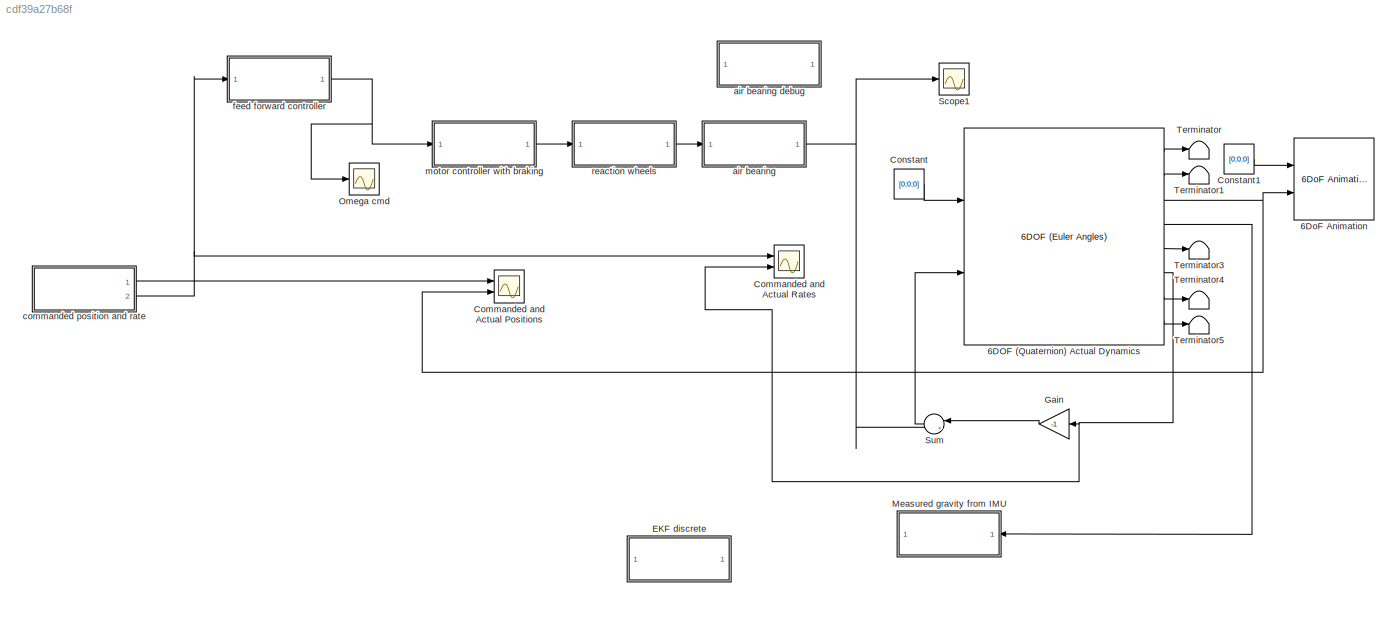
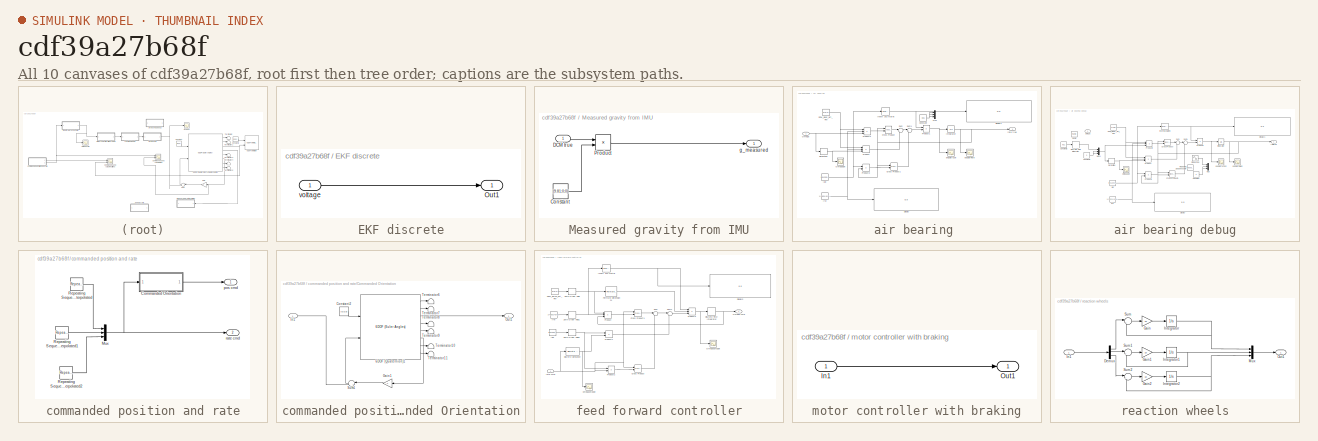
[diagram: thumbnail index - all 10 canvases of the model, root first then tree order]
MODEL slx_cdf39a27b68f
KIND model
CONFIG AbsTol = auto
CONFIG EnableMultiTasking = off
CONFIG FixedStep = auto
CONFIG MaxStep = auto
CONFIG MinStep = auto
CONFIG RelTol = 1e-3
CONFIG SampleTimeConstraint = Unconstrained
CONFIG Solver = VariableStepAuto
CONFIG SolverName = VariableStepAuto
CONFIG StartTime = 0.0
CONFIG StopTime = 200
BLOCK [Reference] 6DOF (Quaternion) Actual Dynamics  REF=shared6dof/6DOF (Euler Angles)
  Ports = [2, 8]
  SourceBlock = shared6dof/6DOF (Euler Angles)
  SourceType = 6DOF EoM (Body Axis)
BLOCK [Reference] 6DoF Animation  REF=aerolibanim/6DoF Animation
  Ports = [2]
  SourceBlock = aerolibanim/6DoF Animation
  SourceProductBaseCode = AE
  SourceProductName = Aerospace Blockset
  SourceType = 6DoF_Animation
BLOCK [Scope] Commanded and Actual Positions
  NumInputPorts = 2
  Ports = [2]
  ScopeSpecificationString = Simulink.scopes.TimeScopeBlockCfg('CurrentConfiguration', extmgr.ConfigurationSet(extmgr.Configuration('Core','General UI',true),extmgr.Configuration('Core','Source UI',true),extmgr.Configuration('Sources','WiredSimulink',true,'DataLoggingVariableName','ScopeData1'),extmgr.Configuration('Visuals','Time Domain',true,'SerializedDisplays',{struct('MinYLimReal','-3.92633','MaxYLimReal','3.92588','YLab...<+1634ch>
BLOCK [Scope] Commanded and Actual Rates
  NumInputPorts = 2
  Ports = [2]
  ScopeSpecificationString = Simulink.scopes.TimeScopeBlockCfg('CurrentConfiguration', extmgr.ConfigurationSet(extmgr.Configuration('Core','General UI',true),extmgr.Configuration('Core','Source UI',true),extmgr.Configuration('Sources','WiredSimulink',true,'DataLoggingVariableName','ScopeData2'),extmgr.Configuration('Visuals','Time Domain',true,'SerializedDisplays',{struct('MinYLimReal','-0.2539','MaxYLimReal','0.25397','YLabe...<+2318ch>
BLOCK [Constant] Constant
  Value = [0;0;0]
BLOCK [Constant] Constant1
  Value = [0;0;0]
BLOCK [SubSystem] EKF discrete
  Ports = [1, 1]
  RequestExecContextInheritance = off
  Variant = off
BLOCK [Outport] EKF discrete/Out1
  IconDisplay = Port number
BLOCK [Inport] EKF discrete/voltage
  IconDisplay = Port number
BLOCK [Gain] Gain
  Gain = -1
  OutDataTypeStr = Inherit: Inherit via internal rule
  ParamDataTypeStr = Inherit: Inherit via internal rule
  SaturateOnIntegerOverflow = off
BLOCK [SubSystem] Measured gravity from IMU
  Ports = [1, 1]
  RequestExecContextInheritance = off
  Variant = off
BLOCK [Constant] Measured gravity from IMU/Constant
  Value = [9.81;0;0]
BLOCK [Inport] Measured gravity from IMU/DCM true
  IconDisplay = Port number
BLOCK [Product] Measured gravity from IMU/Product
  InputSameDT = off
  Multiplication = Matrix(*)
  OutDataTypeStr = Inherit: Inherit via internal rule
  Ports = [2, 1]
  RndMeth = Floor
  SaturateOnIntegerOverflow = off
BLOCK [Outport] Measured gravity from IMU/g_measured
  IconDisplay = Port number
BLOCK [Scope] Omega cmd
  NumInputPorts = 1
  Ports = [1]
  ScopeSpecificationString = Simulink.scopes.TimeScopeBlockCfg('CurrentConfiguration', extmgr.ConfigurationSet(extmgr.Configuration('Core','General UI',true),extmgr.Configuration('Core','Source UI',true),extmgr.Configuration('Sources','WiredSimulink',true,'DataLoggingVariableName','ScopeData2'),extmgr.Configuration('Visuals','Time Domain',true,'SerializedDisplays',{struct('MinYLimReal','-2.97522','MaxYLimReal','2.77481','YLab...<+1438ch>
BLOCK [Scope] Scope1
  NumInputPorts = 1
  Ports = [1]
  ScopeSpecificationString = Simulink.scopes.TimeScopeBlockCfg('CurrentConfiguration', extmgr.ConfigurationSet(extmgr.Configuration('Core','General UI',true),extmgr.Configuration('Core','Source UI',true),extmgr.Configuration('Sources','WiredSimulink',true,'DataLoggingVariableName','ScopeData1'),extmgr.Configuration('Visuals','Time Domain',true,'SerializedDisplays',{struct('MinYLimReal','-2.28683','MaxYLimReal','0.25409','YLab...<+1537ch>
BLOCK [Sum] Sum
  IconShape = round
  InputSameDT = off
  Inputs = |++
  OutDataTypeStr = Inherit: Inherit via internal rule
  Ports = [2, 1]
  SaturateOnIntegerOverflow = off
BLOCK [Terminator] Terminator
BLOCK [Terminator] Terminator1
BLOCK [Terminator] Terminator3
BLOCK [Terminator] Terminator4
BLOCK [Terminator] Terminator5
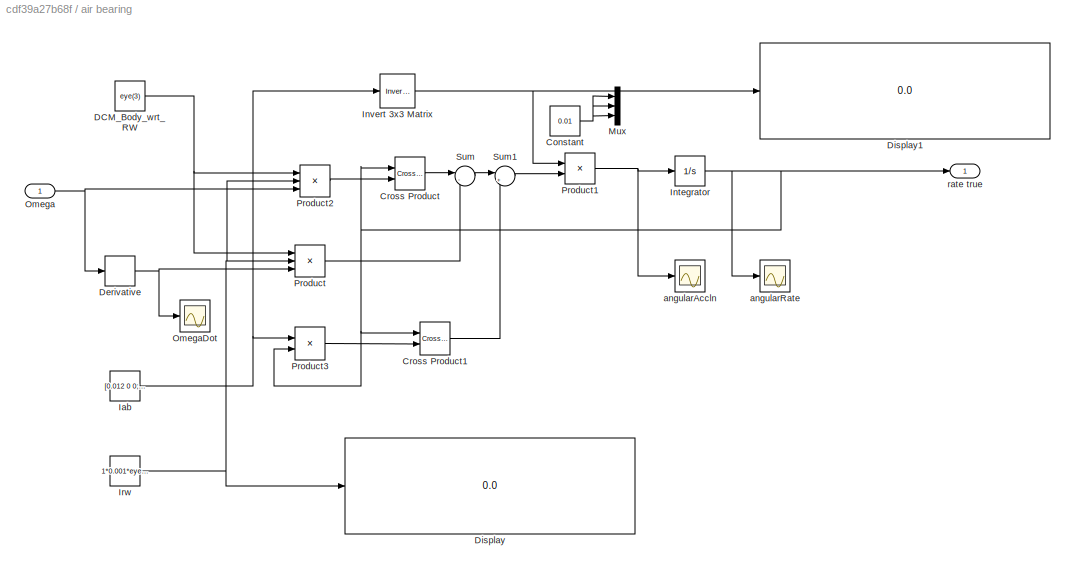
BLOCK [SubSystem] air bearing 
  Ports = [1, 1]
  RequestExecContextInheritance = off
  Variant = off
BLOCK [Constant] air bearing /Constant
  Value = 0.01
BLOCK [Reference] air bearing /Cross Product  REF=vrlib/Utilities/Cross Product
  Ports = [2, 1]
  SourceBlock = vrlib/Utilities/Cross Product
  SourceProductBaseCode = VR
  SourceProductName = Simulink 3D Animation
  SourceType = Cross Product
BLOCK [Reference] air bearing /Cross Product1  REF=vrlib/Utilities/Cross Product
  Ports = [2, 1]
  SourceBlock = vrlib/Utilities/Cross Product
  SourceProductBaseCode = VR
  SourceProductName = Simulink 3D Animation
  SourceType = Cross Product
BLOCK [Constant] air bearing /DCM_Body_wrt_RW
  Value = eye(3)
BLOCK [Derivative] air bearing /Derivative
  CoefficientInTFapproximation = 1
BLOCK [Display] air bearing /Display
  Decimation = 1
  Ports = [1]
BLOCK [Display] air bearing /Display1
  Decimation = 1
  Ports = [1]
BLOCK [Constant] air bearing /Iab
  Value = [0.012 0 0; 0 0.011 0; 0 0 0.01]
BLOCK [Integrator] air bearing /Integrator
  Ports = [1, 1]
BLOCK [Reference] air bearing /Invert 3x3 Matrix  REF=aerolibutil/Invert 
3x3 Matrix
  Ports = [1, 1]
  SourceBlock = aerolibutil/Invert \n3x3 Matrix
  SourceProductBaseCode = AE
  SourceProductName = Aerospace Blockset
  SourceType = Invert 3x3 Matrix
BLOCK [Constant] air bearing /Irw
  Value = 1*0.001*eye(3)
BLOCK [Mux] air bearing /Mux
  DisplayOption = bar
  Inputs = 3
  Ports = [3, 1]
BLOCK [Inport] air bearing /Omega
  IconDisplay = Port number
BLOCK [Scope] air bearing /OmegaDot
  NumInputPorts = 1
  Ports = [1]
  ScopeSpecificationString = Simulink.scopes.TimeScopeBlockCfg('CurrentConfiguration', extmgr.ConfigurationSet(extmgr.Configuration('Core','General UI',true),extmgr.Configuration('Core','Source UI',true),extmgr.Configuration('Sources','WiredSimulink',true,'DataLoggingVariableName','ScopeData3'),extmgr.Configuration('Visuals','Time Domain',true,'SerializedDisplays',{struct('MinYLimReal','-0.2976','MaxYLimReal','0.27756','YLabe...<+1423ch>
BLOCK [Product] air bearing /Product
  InputSameDT = off
  Inputs = 3
  Multiplication = Matrix(*)
  OutDataTypeStr = Inherit: Inherit via internal rule
  Ports = [3, 1]
  RndMeth = Floor
  SaturateOnIntegerOverflow = off
BLOCK [Product] air bearing /Product1
  InputSameDT = off
  Multiplication = Matrix(*)
  OutDataTypeStr = Inherit: Inherit via internal rule
  Ports = [2, 1]
  RndMeth = Floor
  SaturateOnIntegerOverflow = off
BLOCK [Product] air bearing /Product2
  InputSameDT = off
  Inputs = 3
  Multiplication = Matrix(*)
  OutDataTypeStr = Inherit: Inherit via internal rule
  Ports = [3, 1]
  RndMeth = Floor
  SaturateOnIntegerOverflow = off
BLOCK [Product] air bearing /Product3
  InputSameDT = off
  Multiplication = Matrix(*)
  OutDataTypeStr = Inherit: Inherit via internal rule
  Ports = [2, 1]
  RndMeth = Floor
  SaturateOnIntegerOverflow = off
BLOCK [Sum] air bearing /Sum
  IconShape = round
  InputSameDT = off
  Inputs = |--
  OutDataTypeStr = Inherit: Inherit via internal rule
  Ports = [2, 1]
  SaturateOnIntegerOverflow = off
BLOCK [Sum] air bearing /Sum1
  IconShape = round
  InputSameDT = off
  Inputs = |+-
  OutDataTypeStr = Inherit: Inherit via internal rule
  Ports = [2, 1]
  SaturateOnIntegerOverflow = off
BLOCK [Scope] air bearing /angularAccln
  NumInputPorts = 1
  Ports = [1]
  ScopeSpecificationString = Simulink.scopes.TimeScopeBlockCfg('CurrentConfiguration', extmgr.ConfigurationSet(extmgr.Configuration('Core','General UI',true),extmgr.Configuration('Core','Source UI',true),extmgr.Configuration('Sources','WiredSimulink',true,'DataLoggingVariableName','ScopeData5'),extmgr.Configuration('Visuals','Time Domain',true,'SerializedDisplays',{struct('MinYLimReal','-0.02503','MaxYLimReal','0.025','YLabel...<+1423ch>
BLOCK [Scope] air bearing /angularRate
  NumInputPorts = 1
  Ports = [1]
  ScopeSpecificationString = Simulink.scopes.TimeScopeBlockCfg('CurrentConfiguration', extmgr.ConfigurationSet(extmgr.Configuration('Core','General UI',true),extmgr.Configuration('Core','Source UI',true),extmgr.Configuration('Sources','WiredSimulink',true,'DataLoggingVariableName','ScopeData6'),extmgr.Configuration('Visuals','Time Domain',true,'SerializedDisplays',{struct('MinYLimReal','-0.25409','MaxYLimReal','2.28679','YLab...<+1451ch>
BLOCK [Outport] air bearing /rate true
  IconDisplay = Port number
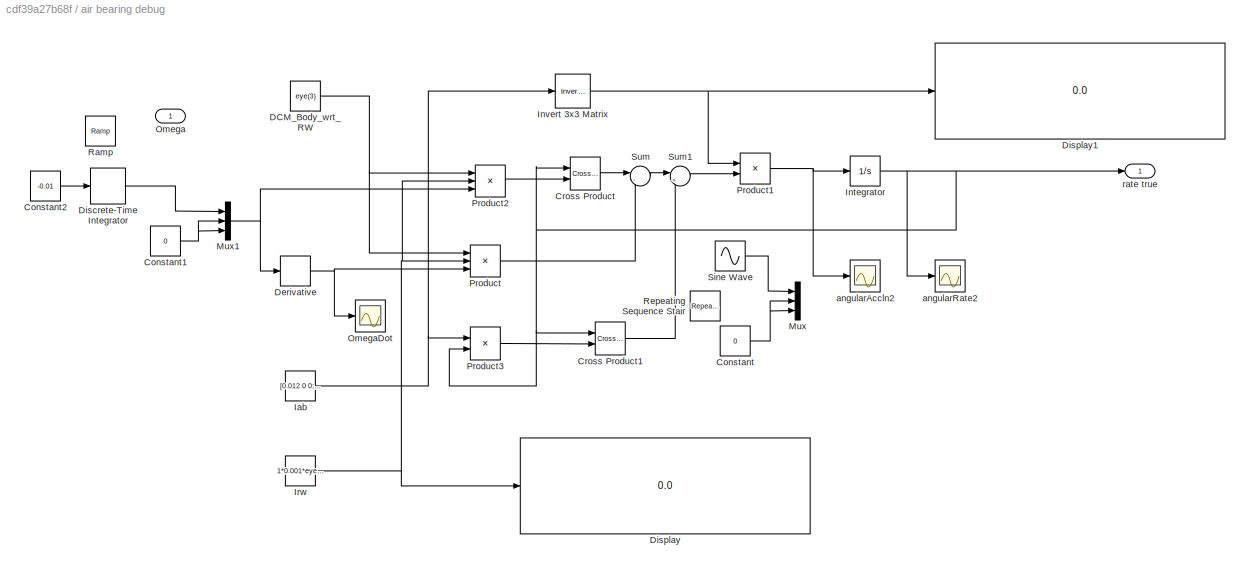
BLOCK [SubSystem] air bearing debug
  Ports = [1, 1]
  RequestExecContextInheritance = off
  Variant = off
BLOCK [Constant] air bearing debug/Constant
  Value = 0
BLOCK [Constant] air bearing debug/Constant1
  Value = 0
BLOCK [Constant] air bearing debug/Constant2
  Value = -0.01
BLOCK [Reference] air bearing debug/Cross Product  REF=vrlib/Utilities/Cross Product
  Ports = [2, 1]
  SourceBlock = vrlib/Utilities/Cross Product
  SourceProductBaseCode = VR
  SourceProductName = Simulink 3D Animation
  SourceType = Cross Product
BLOCK [Reference] air bearing debug/Cross Product1  REF=vrlib/Utilities/Cross Product
  Ports = [2, 1]
  SourceBlock = vrlib/Utilities/Cross Product
  SourceProductBaseCode = VR
  SourceProductName = Simulink 3D Animation
  SourceType = Cross Product
BLOCK [Constant] air bearing debug/DCM_Body_wrt_RW
  Value = eye(3)
BLOCK [Derivative] air bearing debug/Derivative
  CoefficientInTFapproximation = 1
BLOCK [DiscreteIntegrator] air bearing debug/Discrete-Time Integrator
  ICPrevOutput = DiscIntNeverNeededParam
  ICPrevScaledInput = DiscIntNeverNeededParam
  InitialConditionSetting = State (most efficient)
  Ports = [1, 1]
  SampleTime = 0.1
BLOCK [Display] air bearing debug/Display
  Decimation = 1
  Ports = [1]
BLOCK [Display] air bearing debug/Display1
  Decimation = 1
  Ports = [1]
BLOCK [Constant] air bearing debug/Iab
  Value = [0.012 0 0; 0 0.011 0; 0 0 0.01]
BLOCK [Integrator] air bearing debug/Integrator
  Ports = [1, 1]
BLOCK [Reference] air bearing debug/Invert 3x3 Matrix  REF=aerolibutil/Invert 
3x3 Matrix
  Ports = [1, 1]
  SourceBlock = aerolibutil/Invert \n3x3 Matrix
  SourceProductBaseCode = AE
  SourceProductName = Aerospace Blockset
  SourceType = Invert 3x3 Matrix
BLOCK [Constant] air bearing debug/Irw
  Value = 1*0.001*eye(3)
BLOCK [Mux] air bearing debug/Mux
  DisplayOption = bar
  Inputs = 3
  Ports = [3, 1]
BLOCK [Mux] air bearing debug/Mux1
  DisplayOption = bar
  Inputs = 3
  Ports = [3, 1]
BLOCK [Inport] air bearing debug/Omega
  IconDisplay = Port number
BLOCK [Scope] air bearing debug/OmegaDot
  NumInputPorts = 1
  Ports = [1]
  ScopeSpecificationString = Simulink.scopes.TimeScopeBlockCfg('CurrentConfiguration', extmgr.ConfigurationSet(extmgr.Configuration('Core','General UI',true),extmgr.Configuration('Core','Source UI',true),extmgr.Configuration('Sources','WiredSimulink',true,'DataLoggingVariableName','ScopeData3'),extmgr.Configuration('Visuals','Time Domain',true,'SerializedDisplays',{struct('MinYLimReal','-0.1125','MaxYLimReal','0.0125','YLabel...<+1424ch>
BLOCK [Product] air bearing debug/Product
  InputSameDT = off
  Inputs = 3
  Multiplication = Matrix(*)
  OutDataTypeStr = Inherit: Inherit via internal rule
  Ports = [3, 1]
  RndMeth = Floor
  SaturateOnIntegerOverflow = off
BLOCK [Product] air bearing debug/Product1
  InputSameDT = off
  Multiplication = Matrix(*)
  OutDataTypeStr = Inherit: Inherit via internal rule
  Ports = [2, 1]
  RndMeth = Floor
  SaturateOnIntegerOverflow = off
BLOCK [Product] air bearing debug/Product2
  InputSameDT = off
  Inputs = 3
  Multiplication = Matrix(*)
  OutDataTypeStr = Inherit: Inherit via internal rule
  Ports = [3, 1]
  RndMeth = Floor
  SaturateOnIntegerOverflow = off
BLOCK [Product] air bearing debug/Product3
  InputSameDT = off
  Multiplication = Matrix(*)
  OutDataTypeStr = Inherit: Inherit via internal rule
  Ports = [2, 1]
  RndMeth = Floor
  SaturateOnIntegerOverflow = off
BLOCK [Reference] air bearing debug/Ramp  REF=simulink/Sources/Ramp
  Ports = [0, 1]
  SourceBlock = simulink/Sources/Ramp
  SourceProductBaseCode = SL
  SourceProductName = Simulink
  SourceType = Ramp
BLOCK [Reference] air bearing debug/Repeating Sequence Stair  REF=simulink/Sources/Repeating
Sequence
Stair
  Ports = [0, 1]
  SourceBlock = simulink/Sources/Repeating\nSequence\nStair
  SourceProductBaseCode = SL
  SourceProductName = Simulink
  SourceType = Repeating Sequence Stair
BLOCK [Sin] air bearing debug/Sine Wave
  Amplitude = 0.01
  Frequency = .1
  Phase = pi/2
  Ports = [0, 1]
  SampleTime = 0
BLOCK [Sum] air bearing debug/Sum
  IconShape = round
  InputSameDT = off
  Inputs = |--
  OutDataTypeStr = Inherit: Inherit via internal rule
  Ports = [2, 1]
  SaturateOnIntegerOverflow = off
BLOCK [Sum] air bearing debug/Sum1
  IconShape = round
  InputSameDT = off
  Inputs = |+-
  OutDataTypeStr = Inherit: Inherit via internal rule
  Ports = [2, 1]
  SaturateOnIntegerOverflow = off
BLOCK [Scope] air bearing debug/angularAccln2
  NumInputPorts = 1
  Ports = [1]
  ScopeSpecificationString = Simulink.scopes.TimeScopeBlockCfg('CurrentConfiguration', extmgr.ConfigurationSet(extmgr.Configuration('Core','General UI',true),extmgr.Configuration('Core','Source UI',true),extmgr.Configuration('Sources','WiredSimulink',true,'DataLoggingVariableName','ScopeData5'),extmgr.Configuration('Visuals','Time Domain',true,'SerializedDisplays',{struct('MinYLimReal','-0.00182','MaxYLimReal','0.01641','YLab...<+1426ch>
BLOCK [Scope] air bearing debug/angularRate2
  NumInputPorts = 1
  Ports = [1]
  ScopeSpecificationString = Simulink.scopes.TimeScopeBlockCfg('CurrentConfiguration', extmgr.ConfigurationSet(extmgr.Configuration('Core','General UI',true),extmgr.Configuration('Core','Source UI',true),extmgr.Configuration('Sources','WiredSimulink',true,'DataLoggingVariableName','ScopeData6'),extmgr.Configuration('Visuals','Time Domain',true,'SerializedDisplays',{struct('MinYLimReal','-0.00009','MaxYLimReal','0.00085','YLab...<+1453ch>
BLOCK [Outport] air bearing debug/rate true
  IconDisplay = Port number
BLOCK [SubSystem] commanded position and rate
  Ports = [0, 2]
  RequestExecContextInheritance = off
  Variant = off
BLOCK [SubSystem] commanded position and rate/Commanded Orientation
  Ports = [1, 1]
  RequestExecContextInheritance = off
  Variant = off
BLOCK [Reference] commanded position and rate/Commanded Orientation/6DOF (Quaternion)1  REF=shared6dof/6DOF (Euler Angles)
  Ports = [2, 8]
  SourceBlock = shared6dof/6DOF (Euler Angles)
  SourceType = 6DOF EoM (Body Axis)
BLOCK [Constant] commanded position and rate/Commanded Orientation/Constant2
  Value = [0;0;0]
BLOCK [Gain] commanded position and rate/Commanded Orientation/Gain1
  Gain = -1
  OutDataTypeStr = Inherit: Inherit via internal rule
  ParamDataTypeStr = Inherit: Inherit via internal rule
  SaturateOnIntegerOverflow = off
BLOCK [Inport] commanded position and rate/Commanded Orientation/In1
  IconDisplay = Port number
BLOCK [Outport] commanded position and rate/Commanded Orientation/Out1
  IconDisplay = Port number
BLOCK [Sum] commanded position and rate/Commanded Orientation/Sum1
  IconShape = round
  InputSameDT = off
  Inputs = |++
  OutDataTypeStr = Inherit: Inherit via internal rule
  Ports = [2, 1]
  SaturateOnIntegerOverflow = off
BLOCK [Terminator] commanded position and rate/Commanded Orientation/Terminator10
BLOCK [Terminator] commanded position and rate/Commanded Orientation/Terminator11
BLOCK [Terminator] commanded position and rate/Commanded Orientation/Terminator6
BLOCK [Terminator] commanded position and rate/Commanded Orientation/Terminator7
BLOCK [Terminator] commanded position and rate/Commanded Orientation/Terminator8
BLOCK [Terminator] commanded position and rate/Commanded Orientation/Terminator9
BLOCK [Mux] commanded position and rate/Mux
  DisplayOption = bar
  Inputs = 3
  Ports = [3, 1]
BLOCK [Reference] commanded position and rate/Repeating Sequence Interpolated  REF=simulink/Sources/Repeating
Sequence
Interpolated
  Ports = [0, 1]
  SourceBlock = simulink/Sources/Repeating\nSequence\nInterpolated
  SourceProductBaseCode = SL
  SourceProductName = Simulink
  SourceType = Repeating Sequence Interpolated
BLOCK [Reference] commanded position and rate/Repeating Sequence Interpolated1  REF=simulink/Sources/Repeating
Sequence
Interpolated
  Ports = [0, 1]
  SourceBlock = simulink/Sources/Repeating\nSequence\nInterpolated
  SourceProductBaseCode = SL
  SourceProductName = Simulink
  SourceType = Repeating Sequence Interpolated
BLOCK [Reference] commanded position and rate/Repeating Sequence Interpolated2  REF=simulink/Sources/Repeating
Sequence
Interpolated
  Ports = [0, 1]
  SourceBlock = simulink/Sources/Repeating\nSequence\nInterpolated
  SourceProductBaseCode = SL
  SourceProductName = Simulink
  SourceType = Repeating Sequence Interpolated
BLOCK [Outport] commanded position and rate/pos cmd
  IconDisplay = Port number
BLOCK [Outport] commanded position and rate/rate cmd
  IconDisplay = Port number
  Port = 2
BLOCK [SubSystem] feed forward controller
  Ports = [1, 1]
  RequestExecContextInheritance = off
  Variant = off
BLOCK [Reference] feed forward controller/Cross Product  REF=vrlib/Utilities/Cross Product
  Ports = [2, 1]
  SourceBlock = vrlib/Utilities/Cross Product
  SourceProductBaseCode = VR
  SourceProductName = Simulink 3D Animation
  SourceType = Cross Product
BLOCK [Reference] feed forward controller/Cross Product1  REF=vrlib/Utilities/Cross Product
  Ports = [2, 1]
  SourceBlock = vrlib/Utilities/Cross Product
  SourceProductBaseCode = VR
  SourceProductName = Simulink 3D Animation
  SourceType = Cross Product
BLOCK [Constant] feed forward controller/DCM_BODY_wrt_RW
  Value = eye(3)
BLOCK [Reference] feed forward controller/Discrete Derivative  REF=simulink/Discrete/Discrete Derivative
  Ports = [1, 1]
  SourceBlock = simulink/Discrete/Discrete Derivative
  SourceProductBaseCode = SL
  SourceProductName = Simulink
  SourceType = Discrete Derivative
BLOCK [DiscreteIntegrator] feed forward controller/Discrete-Time Integrator
  ICPrevOutput = DiscIntNeverNeededParam
  ICPrevScaledInput = DiscIntNeverNeededParam
  InitialConditionSetting = State (most efficient)
  Ports = [1, 1]
  SampleTime = -1
  gainval = 1
BLOCK [Display] feed forward controller/Display3
  Decimation = 1
  Ports = [1]
BLOCK [Constant] feed forward controller/Iab
  Value = [0.012 0 0; 0 0.011 0; 0 0 0.01]
BLOCK [Reference] feed forward controller/Invert 3x3 Matrix  REF=aerolibutil/Invert 
3x3 Matrix
  Ports = [1, 1]
  SourceBlock = aerolibutil/Invert \n3x3 Matrix
  SourceProductBaseCode = AE
  SourceProductName = Aerospace Blockset
  SourceType = Invert 3x3 Matrix
BLOCK [Constant] feed forward controller/Irw
  Value = 1*0.001*eye(3)
BLOCK [Outport] feed forward controller/Omega cmd
  IconDisplay = Port number
BLOCK [Scope] feed forward controller/OmegaCmdDot
  NumInputPorts = 1
  Ports = [1]
  ScopeSpecificationString = Simulink.scopes.TimeScopeBlockCfg('CurrentConfiguration', extmgr.ConfigurationSet(extmgr.Configuration('Core','General UI',true),extmgr.Configuration('Core','Source UI',true),extmgr.Configuration('Sources','WiredSimulink',true,'DataLoggingVariableName','ScopeData4'),extmgr.Configuration('Visuals','Time Domain',true,'SerializedDisplays',{struct('MinYLimReal','-0.89375','MaxYLimReal','2.54375','YLab...<+1423ch>
BLOCK [PermuteDimensions] feed forward controller/Permute Dimensions1
  Order = [2 1]
BLOCK [Product] feed forward controller/Product
  InputSameDT = off
  Inputs = 3
  Multiplication = Matrix(*)
  OutDataTypeStr = Inherit: Inherit via internal rule
  Ports = [3, 1]
  RndMeth = Floor
  SaturateOnIntegerOverflow = off
BLOCK [Product] feed forward controller/Product1
  InputSameDT = off
  Multiplication = Matrix(*)
  OutDataTypeStr = Inherit: Inherit via internal rule
  Ports = [2, 1]
  RndMeth = Floor
  SaturateOnIntegerOverflow = off
BLOCK [Product] feed forward controller/Product2
  InputSameDT = off
  Multiplication = Matrix(*)
  OutDataTypeStr = Inherit: Inherit via internal rule
  Ports = [2, 1]
  RndMeth = Floor
  SaturateOnIntegerOverflow = off
BLOCK [Product] feed forward controller/Product3
  InputSameDT = off
  Inputs = 3
  Multiplication = Matrix(*)
  OutDataTypeStr = Inherit: Inherit via internal rule
  Ports = [3, 1]
  RndMeth = Floor
  SaturateOnIntegerOverflow = off
BLOCK [Sum] feed forward controller/Sum
  IconShape = round
  InputSameDT = off
  Inputs = |--
  OutDataTypeStr = Inherit: Inherit via internal rule
  Ports = [2, 1]
  SaturateOnIntegerOverflow = off
BLOCK [Sum] feed forward controller/Sum1
  IconShape = round
  InputSameDT = off
  Inputs = |+-
  OutDataTypeStr = Inherit: Inherit via internal rule
  Ports = [2, 1]
  SaturateOnIntegerOverflow = off
BLOCK [ZeroOrderHold] feed forward controller/Zero-Order Hold
  SampleTime = -1
BLOCK [ZeroOrderHold] feed forward controller/Zero-Order Hold1
  SampleTime = -1
BLOCK [ZeroOrderHold] feed forward controller/Zero-Order Hold2
  SampleTime = -1
BLOCK [Scope] feed forward controller/omegaCmdDot
  NumInputPorts = 1
  Ports = [1]
  ScopeSpecificationString = Simulink.scopes.TimeScopeBlockCfg('CurrentConfiguration', extmgr.ConfigurationSet(extmgr.Configuration('Core','General UI',true),extmgr.Configuration('Core','Source UI',true),extmgr.Configuration('Sources','WiredSimulink',true,'DataLoggingVariableName','ScopeData1'),extmgr.Configuration('Visuals','Time Domain',true,'SerializedDisplays',{struct('MinYLimReal','-0.23125','MaxYLimReal','0.08125','YLab...<+1459ch>
BLOCK [Inport] feed forward controller/rate cmd
  IconDisplay = Port number
BLOCK [SubSystem] motor controller with braking
  Ports = [1, 1]
  RequestExecContextInheritance = off
  Variant = off
BLOCK [Inport] motor controller with braking/In1
  IconDisplay = Port number
BLOCK [Outport] motor controller with braking/Out1
  IconDisplay = Port number
BLOCK [SubSystem] reaction wheels
  Ports = [1, 1]
  RequestExecContextInheritance = off
  Variant = off
BLOCK [Demux] reaction wheels/Demux
  DisplayOption = bar
  Outputs = 3
  Ports = [1, 3]
BLOCK [Gain] reaction wheels/Gain
  Gain = 10
  OutDataTypeStr = Inherit: Inherit via internal rule
  ParamDataTypeStr = Inherit: Inherit via internal rule
  SaturateOnIntegerOverflow = off
BLOCK [Gain] reaction wheels/Gain1
  Gain = 10
  OutDataTypeStr = Inherit: Inherit via internal rule
  ParamDataTypeStr = Inherit: Inherit via internal rule
  SaturateOnIntegerOverflow = off
BLOCK [Gain] reaction wheels/Gain2
  Gain = 10
  OutDataTypeStr = Inherit: Inherit via internal rule
  ParamDataTypeStr = Inherit: Inherit via internal rule
  SaturateOnIntegerOverflow = off
BLOCK [Inport] reaction wheels/In1
  IconDisplay = Port number
BLOCK [Integrator] reaction wheels/Integrator
  Ports = [1, 1]
BLOCK [Integrator] reaction wheels/Integrator1
  Ports = [1, 1]
BLOCK [Integrator] reaction wheels/Integrator2
  Ports = [1, 1]
BLOCK [Mux] reaction wheels/Mux
  DisplayOption = bar
  Inputs = 3
  Ports = [3, 1]
BLOCK [Outport] reaction wheels/Out1
  IconDisplay = Port number
BLOCK [Sum] reaction wheels/Sum
  IconShape = round
  InputSameDT = off
  Inputs = |+-
  OutDataTypeStr = Inherit: Inherit via internal rule
  Ports = [2, 1]
  SaturateOnIntegerOverflow = off
BLOCK [Sum] reaction wheels/Sum1
  IconShape = round
  InputSameDT = off
  Inputs = |+-
  OutDataTypeStr = Inherit: Inherit via internal rule
  Ports = [2, 1]
  SaturateOnIntegerOverflow = off
BLOCK [Sum] reaction wheels/Sum2
  IconShape = round
  InputSameDT = off
  Inputs = |+-
  OutDataTypeStr = Inherit: Inherit via internal rule
  Ports = [2, 1]
  SaturateOnIntegerOverflow = off
LINE 6DOF (Quaternion) Actual Dynamics:1 -> Terminator:1
LINE 6DOF (Quaternion) Actual Dynamics:2 -> Terminator1:1
NET 6DOF (Quaternion) Actual Dynamics:3 -> 6DoF Animation:2, Commanded and Actual Positions:2
LINE 6DOF (Quaternion) Actual Dynamics:4 -> Measured gravity from IMU:1
LINE 6DOF (Quaternion) Actual Dynamics:5 -> Terminator3:1
NET 6DOF (Quaternion) Actual Dynamics:6 -> Commanded and Actual Rates:2, Gain:1
LINE 6DOF (Quaternion) Actual Dynamics:7 -> Terminator4:1
LINE 6DOF (Quaternion) Actual Dynamics:8 -> Terminator5:1
LINE Constant1:1 -> 6DoF Animation:1
LINE Constant:1 -> 6DOF (Quaternion) Actual Dynamics:1
LINE EKF discrete/voltage:1 -> EKF discrete/Out1:1
LINE Gain:1 -> Sum:1
LINE Measured gravity from IMU/Constant:1 -> Measured gravity from IMU/Product:2
LINE Measured gravity from IMU/DCM true:1 -> Measured gravity from IMU/Product:1
LINE Measured gravity from IMU/Product:1 -> Measured gravity from IMU/g_measured:1
LINE Sum:1 -> 6DOF (Quaternion) Actual Dynamics:2
NET air bearing /Constant:1 -> air bearing /Mux:1, air bearing /Mux:2, air bearing /Mux:3
LINE air bearing /Cross Product1:1 -> air bearing /Sum1:2
LINE air bearing /Cross Product:1 -> air bearing /Sum:1
NET air bearing /DCM_Body_wrt_RW:1 -> air bearing /Product2:1, air bearing /Product:1
NET air bearing /Derivative:1 -> air bearing /OmegaDot:1, air bearing /Product:3
NET air bearing /Iab:1 -> air bearing /Invert 3x3 Matrix:1, air bearing /Product3:1
NET air bearing /Integrator:1 -> air bearing /Cross Product1:1, air bearing /Cross Product:1, air bearing /Product3:2, air bearing /angularRate:1, air bearing /rate true:1
NET air bearing /Invert 3x3 Matrix:1 -> air bearing /Display1:1, air bearing /Product1:1
NET air bearing /Irw:1 -> air bearing /Display:1, air bearing /Product2:2, air bearing /Product:2
NET air bearing /Omega:1 -> air bearing /Derivative:1, air bearing /Product2:3
NET air bearing /Product1:1 -> air bearing /Integrator:1, air bearing /angularAccln:1
LINE air bearing /Product2:1 -> air bearing /Cross Product:2
LINE air bearing /Product3:1 -> air bearing /Cross Product1:2
LINE air bearing /Product:1 -> air bearing /Sum:2
LINE air bearing /Sum1:1 -> air bearing /Product1:2
LINE air bearing /Sum:1 -> air bearing /Sum1:1
NET air bearing :1 -> Scope1:1, Sum:2
NET air bearing debug/Constant1:1 -> air bearing debug/Mux1:2, air bearing debug/Mux1:3
LINE air bearing debug/Constant2:1 -> air bearing debug/Discrete-Time Integrator:1
NET air bearing debug/Constant:1 -> air bearing debug/Mux:2, air bearing debug/Mux:3
LINE air bearing debug/Cross Product1:1 -> air bearing debug/Sum1:2
LINE air bearing debug/Cross Product:1 -> air bearing debug/Sum:1
NET air bearing debug/DCM_Body_wrt_RW:1 -> air bearing debug/Product2:1, air bearing debug/Product:1
NET air bearing debug/Derivative:1 -> air bearing debug/OmegaDot:1, air bearing debug/Product:3
LINE air bearing debug/Discrete-Time Integrator:1 -> air bearing debug/Mux1:1
NET air bearing debug/Iab:1 -> air bearing debug/Invert 3x3 Matrix:1, air bearing debug/Product3:1
NET air bearing debug/Integrator:1 -> air bearing debug/Cross Product1:1, air bearing debug/Cross Product:1, air bearing debug/Product3:2, air bearing debug/angularRate2:1, air bearing debug/rate true:1
NET air bearing debug/Invert 3x3 Matrix:1 -> air bearing debug/Display1:1, air bearing debug/Product1:1
NET air bearing debug/Irw:1 -> air bearing debug/Display:1, air bearing debug/Product2:2, air bearing debug/Product:2
NET air bearing debug/Mux1:1 -> air bearing debug/Derivative:1, air bearing debug/Product2:3
NET air bearing debug/Product1:1 -> air bearing debug/Integrator:1, air bearing debug/angularAccln2:1
LINE air bearing debug/Product2:1 -> air bearing debug/Cross Product:2
LINE air bearing debug/Product3:1 -> air bearing debug/Cross Product1:2
LINE air bearing debug/Product:1 -> air bearing debug/Sum:2
LINE air bearing debug/Sine Wave:1 -> air bearing debug/Mux:1
LINE air bearing debug/Sum1:1 -> air bearing debug/Product1:2
LINE air bearing debug/Sum:1 -> air bearing debug/Sum1:1
LINE commanded position and rate/Commanded Orientation/6DOF (Quaternion)1:1 -> commanded position and rate/Commanded Orientation/Terminator6:1
LINE commanded position and rate/Commanded Orientation/6DOF (Quaternion)1:2 -> commanded position and rate/Commanded Orientation/Terminator7:1
LINE commanded position and rate/Commanded Orientation/6DOF (Quaternion)1:3 -> commanded position and rate/Commanded Orientation/Out1:1
LINE commanded position and rate/Commanded Orientation/6DOF (Quaternion)1:4 -> commanded position and rate/Commanded Orientation/Terminator8:1
LINE commanded position and rate/Commanded Orientation/6DOF (Quaternion)1:5 -> commanded position and rate/Commanded Orientation/Terminator9:1
LINE commanded position and rate/Commanded Orientation/6DOF (Quaternion)1:6 -> commanded position and rate/Commanded Orientation/Gain1:1
LINE commanded position and rate/Commanded Orientation/6DOF (Quaternion)1:7 -> commanded position and rate/Commanded Orientation/Terminator10:1
LINE commanded position and rate/Commanded Orientation/6DOF (Quaternion)1:8 -> commanded position and rate/Commanded Orientation/Terminator11:1
LINE commanded position and rate/Commanded Orientation/Constant2:1 -> commanded position and rate/Commanded Orientation/6DOF (Quaternion)1:1
LINE commanded position and rate/Commanded Orientation/Gain1:1 -> commanded position and rate/Commanded Orientation/Sum1:1
LINE commanded position and rate/Commanded Orientation/In1:1 -> commanded position and rate/Commanded Orientation/Sum1:2
LINE commanded position and rate/Commanded Orientation/Sum1:1 -> commanded position and rate/Commanded Orientation/6DOF (Quaternion)1:2
LINE commanded position and rate/Commanded Orientation:1 -> commanded position and rate/pos cmd:1
NET commanded position and rate/Mux:1 -> commanded position and rate/Commanded Orientation:1, commanded position and rate/rate cmd:1
LINE commanded position and rate/Repeating Sequence Interpolated1:1 -> commanded position and rate/Mux:2
LINE commanded position and rate/Repeating Sequence Interpolated2:1 -> commanded position and rate/Mux:3
LINE commanded position and rate/Repeating Sequence Interpolated:1 -> commanded position and rate/Mux:1
LINE commanded position and rate:1 -> Commanded and Actual Positions:1
NET commanded position and rate:2 -> Commanded and Actual Rates:1, feed forward controller:1
LINE feed forward controller/Cross Product1:1 -> feed forward controller/Sum:1
LINE feed forward controller/Cross Product:1 -> feed forward controller/Sum:2
LINE feed forward controller/DCM_BODY_wrt_RW:1 -> feed forward controller/Zero-Order Hold:1
NET feed forward controller/Discrete Derivative:1 -> feed forward controller/Product1:2, feed forward controller/omegaCmdDot:1
NET feed forward controller/Discrete-Time Integrator:1 -> feed forward controller/Omega cmd:1, feed forward controller/Product:3
LINE feed forward controller/Iab:1 -> feed forward controller/Zero-Order Hold2:1
NET feed forward controller/Invert 3x3 Matrix:1 -> feed forward controller/Display3:1, feed forward controller/Product3:1
LINE feed forward controller/Irw:1 -> feed forward controller/Zero-Order Hold1:1
LINE feed forward controller/Permute Dimensions1:1 -> feed forward controller/Product3:2
LINE feed forward controller/Product1:1 -> feed forward controller/Sum1:2
LINE feed forward controller/Product2:1 -> feed forward controller/Cross Product:2
NET feed forward controller/Product3:1 -> feed forward controller/Discrete-Time Integrator:1, feed forward controller/OmegaCmdDot:1
LINE feed forward controller/Product:1 -> feed forward controller/Cross Product1:2
LINE feed forward controller/Sum1:1 -> feed forward controller/Product3:3
LINE feed forward controller/Sum:1 -> feed forward controller/Sum1:1
NET feed forward controller/Zero-Order Hold1:1 -> feed forward controller/Invert 3x3 Matrix:1, feed forward controller/Product:2
NET feed forward controller/Zero-Order Hold2:1 -> feed forward controller/Product1:1, feed forward controller/Product2:1
NET feed forward controller/Zero-Order Hold:1 -> feed forward controller/Permute Dimensions1:1, feed forward controller/Product:1
NET feed forward controller/rate cmd:1 -> feed forward controller/Cross Product1:1, feed forward controller/Cross Product:1, feed forward controller/Discrete Derivative:1, feed forward controller/Product2:2
NET feed forward controller:1 -> Omega cmd:1, motor controller with braking:1
LINE motor controller with braking/In1:1 -> motor controller with braking/Out1:1
LINE motor controller with braking:1 -> reaction wheels:1
LINE reaction wheels/Demux:1 -> reaction wheels/Sum:1
LINE reaction wheels/Demux:2 -> reaction wheels/Sum1:1
LINE reaction wheels/Demux:3 -> reaction wheels/Sum2:1
LINE reaction wheels/Gain1:1 -> reaction wheels/Integrator1:1
LINE reaction wheels/Gain2:1 -> reaction wheels/Integrator2:1
LINE reaction wheels/Gain:1 -> reaction wheels/Integrator:1
LINE reaction wheels/In1:1 -> reaction wheels/Demux:1
NET reaction wheels/Integrator1:1 -> reaction wheels/Mux:2, reaction wheels/Sum1:2
NET reaction wheels/Integrator2:1 -> reaction wheels/Mux:3, reaction wheels/Sum2:2
NET reaction wheels/Integrator:1 -> reaction wheels/Mux:1, reaction wheels/Sum:2
LINE reaction wheels/Mux:1 -> reaction wheels/Out1:1
LINE reaction wheels/Sum1:1 -> reaction wheels/Gain1:1
LINE reaction wheels/Sum2:1 -> reaction wheels/Gain2:1
LINE reaction wheels/Sum:1 -> reaction wheels/Gain:1
LINE reaction wheels:1 -> air bearing :1
note: NET lines group one-source signal fan-out (src -> all destinations, sorted); 1:1 wires keep LINE
